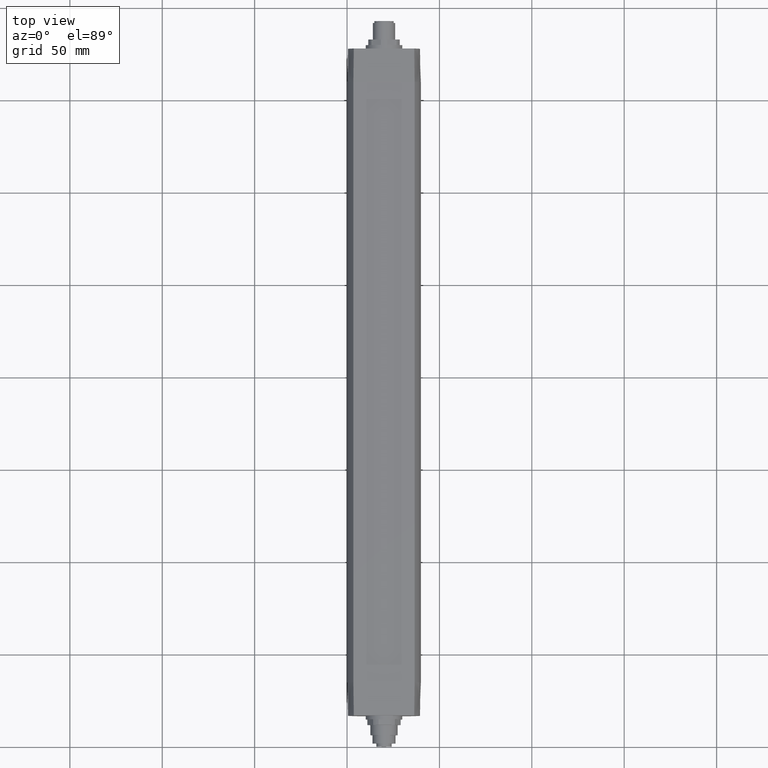
[diagram: clean part render]
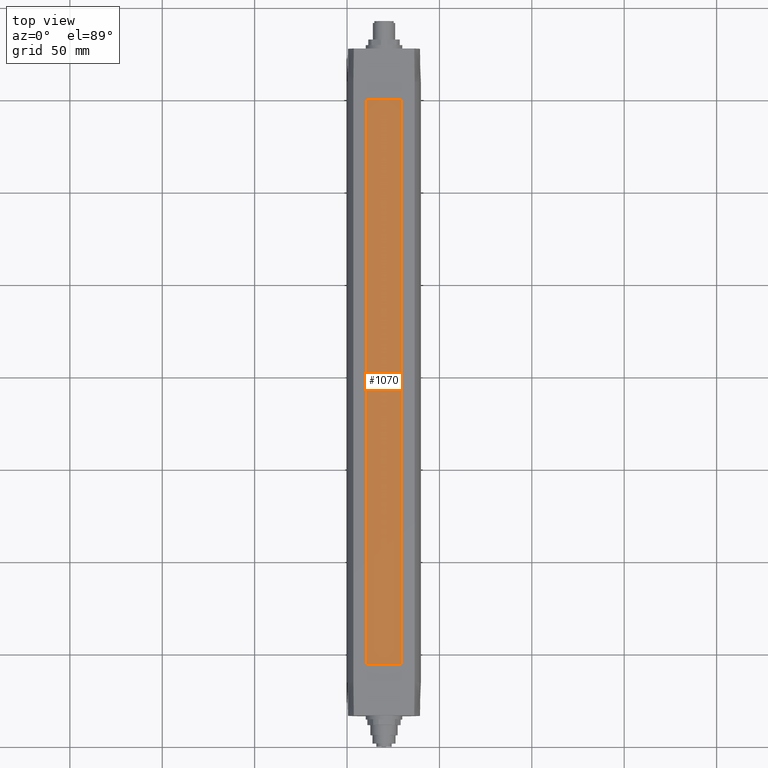
[diagram: same view with one face highlighted and labeled with its STEP entity id]
A machine part, top view. The second image highlights one B-rep face of the part: STEP entity #1070.
In plain terms, the highlighted planar face has unit normal (0, 0, 1).
Its self-contained STEP definition (entity closure, byte-faithful):
#680=CARTESIAN_POINT('',(-9.97500378000003,11.,68.77500378));
#690=DIRECTION('',(-0.,1.,0.));
#700=DIRECTION('',(1.,0.,0.));
#710=AXIS2_PLACEMENT_3D('',#680,#690,#700);
#720=PLANE('',#710);
#730=CARTESIAN_POINT('',(1.77635683940025E-14,11.,240.5));
#740=DIRECTION('',(1.,0.,0.));
#750=VECTOR('',#740,1.);
#760=LINE('',#730,#750);
#770=CARTESIAN_POINT('',(-9.49999999999999,11.,240.5));
#780=VERTEX_POINT('',#770);
#790=CARTESIAN_POINT('',(9.50000000000003,11.,240.5));
#800=VERTEX_POINT('',#790);
#810=EDGE_CURVE('',#780,#800,#760,.T.);
#820=ORIENTED_EDGE('',*,*,#810,.T.);
#830=CARTESIAN_POINT('',(-9.49999999999999,11.,0.));
#840=DIRECTION('',(0.,0.,1.));
#850=VECTOR('',#840,1.);
#860=LINE('',#830,#850);
#870=CARTESIAN_POINT('',(-9.49999999999999,11.,-65.5));
#880=VERTEX_POINT('',#870);
#890=EDGE_CURVE('',#880,#780,#860,.T.);
#900=ORIENTED_EDGE('',*,*,#890,.T.);
#910=CARTESIAN_POINT('',(0.,11.,-65.5));
#920=DIRECTION('',(-1.,0.,0.));
#930=VECTOR('',#920,1.);
#940=LINE('',#910,#930);
#950=CARTESIAN_POINT('',(9.50000000000003,11.,-65.5));
#960=VERTEX_POINT('',#950);
#970=EDGE_CURVE('',#960,#880,#940,.T.);
#980=ORIENTED_EDGE('',*,*,#970,.T.);
#990=CARTESIAN_POINT('',(9.50000000000003,11.,0.));
#1000=DIRECTION('',(0.,0.,-1.));
#1010=VECTOR('',#1000,1.);
#1020=LINE('',#990,#1010);
#1030=EDGE_CURVE('',#800,#960,#1020,.T.);
#1040=ORIENTED_EDGE('',*,*,#1030,.T.);
#1050=EDGE_LOOP('',(#1040,#980,#900,#820));
#1060=FACE_OUTER_BOUND('',#1050,.T.);
#1070=ADVANCED_FACE('',(#1060),#720,.T.);